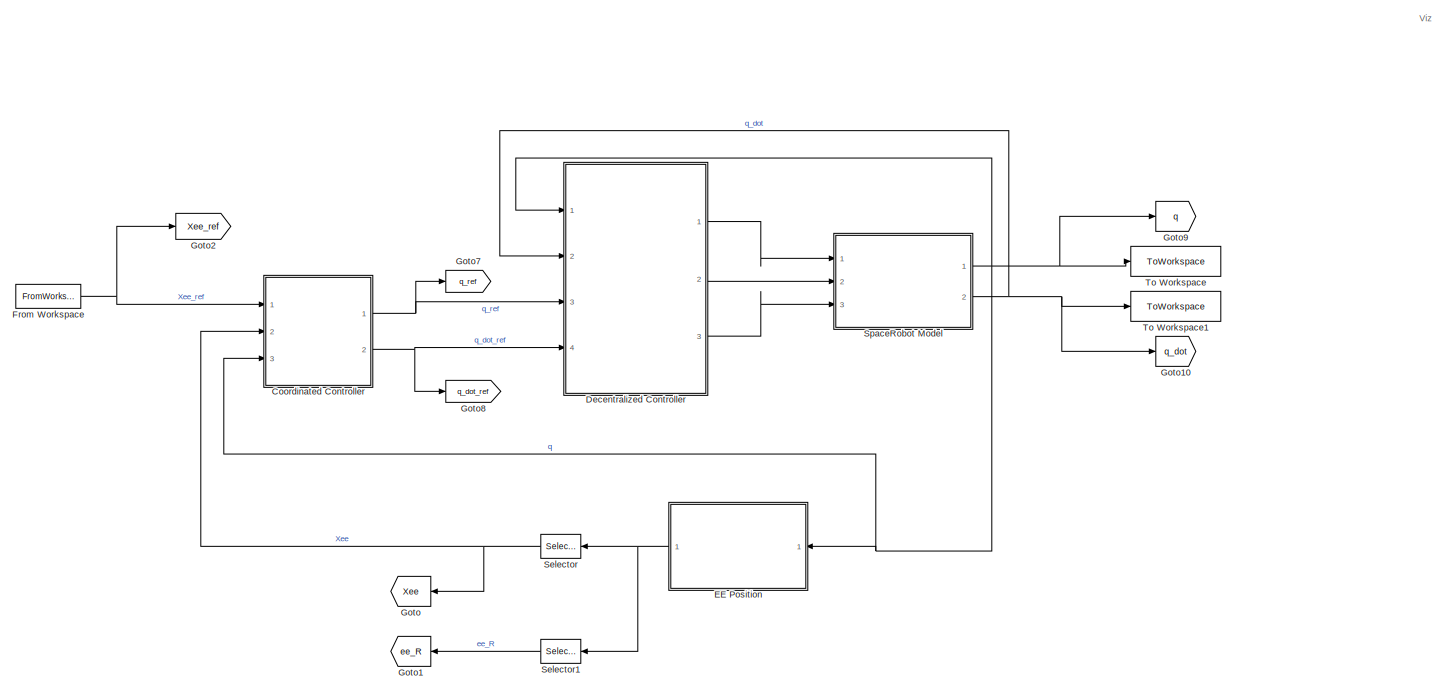
[diagram: root canvas - part 1/2, most of the canvas]
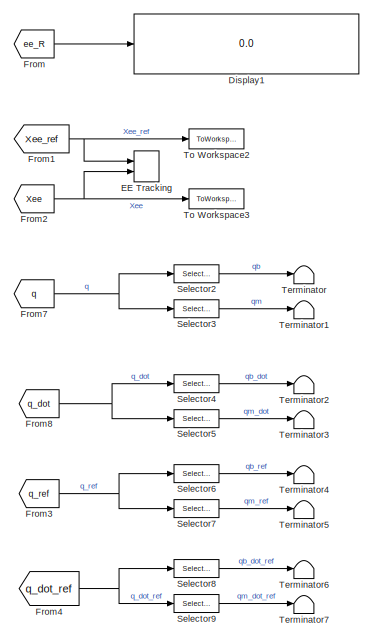
[diagram: root canvas - part 2/2, right side, full height]
MODEL slx_43078829ebe7
KIND model
CONFIG AbsTol = auto
CONFIG EnableMultiTasking = off
CONFIG FixedStep = 0.01
CONFIG MaxStep = auto
CONFIG MinStep = auto
CONFIG RelTol = 1e-3
CONFIG SampleTimeConstraint = Unconstrained
CONFIG SolverName = ode45
CONFIG StartTime = 0.0
CONFIG StopTime = 10
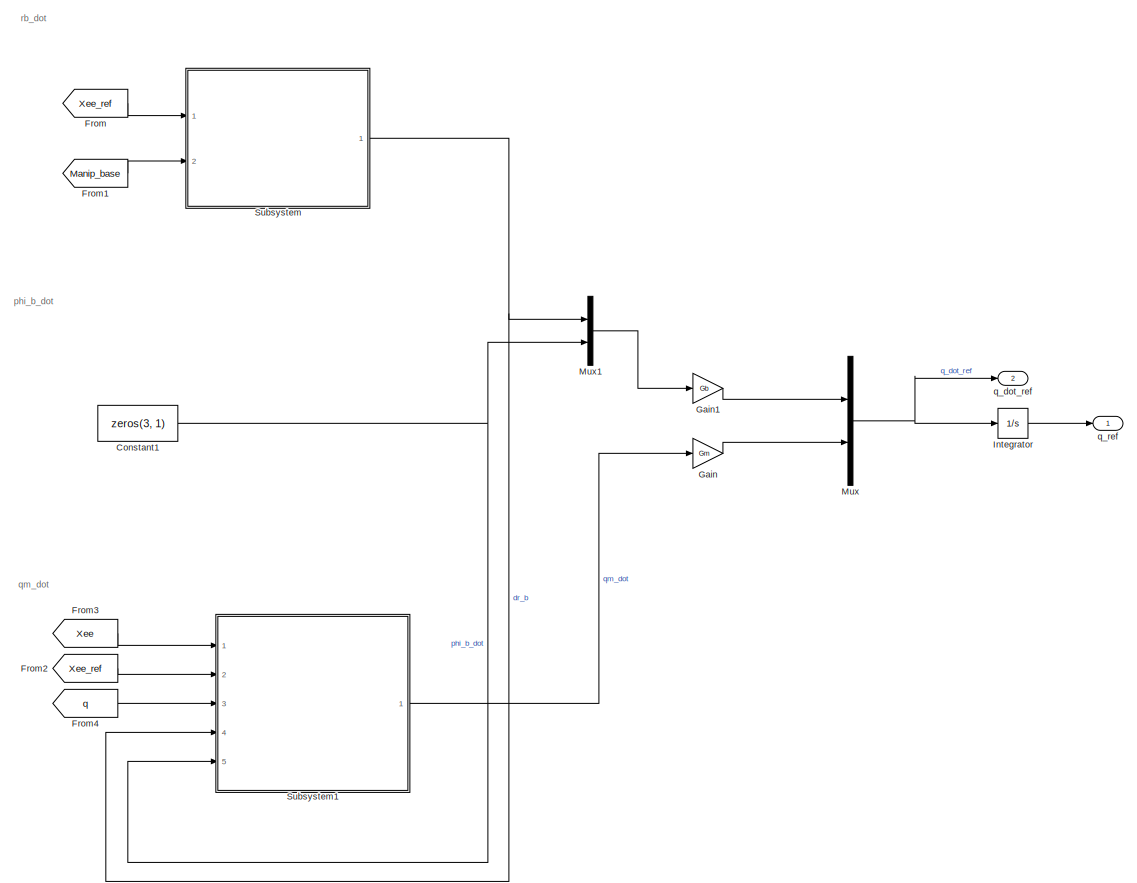
[diagram: Coordinated Controller - part 1/2, right side, full height]
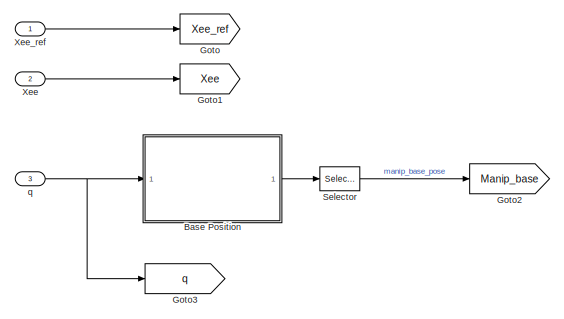
[diagram: Coordinated Controller - part 2/2, middle left region]
BLOCK [SubSystem] Coordinated Controller
  Ports = [3, 2]
  RequestExecContextInheritance = off
BLOCK [SubSystem] Coordinated Controller/Base Position
  Ports = [1, 1]
  ReferencedSubsystem = GetTransform
  RequestExecContextInheritance = off
  SimulateUsing = Interpreted execution
  sourceBody = Body1
  spaceRobot = spaceRobot
  targetBody = inertial
BLOCK [Constant] Coordinated Controller/Constant1
  Value = zeros(3, 1)
BLOCK [From] Coordinated Controller/From
  GotoTag = Xee_ref
BLOCK [From] Coordinated Controller/From1
  GotoTag = Manip_base
BLOCK [From] Coordinated Controller/From2
  GotoTag = Xee_ref
BLOCK [From] Coordinated Controller/From3
  GotoTag = Xee
BLOCK [From] Coordinated Controller/From4
  GotoTag = q
BLOCK [Gain] Coordinated Controller/Gain
  Gain = Gm
BLOCK [Gain] Coordinated Controller/Gain1
  Gain = Gb
BLOCK [Goto] Coordinated Controller/Goto
  GotoTag = Xee_ref
BLOCK [Goto] Coordinated Controller/Goto1
  GotoTag = Xee
BLOCK [Goto] Coordinated Controller/Goto2
  GotoTag = Manip_base
BLOCK [Goto] Coordinated Controller/Goto3
  GotoTag = q
BLOCK [Integrator] Coordinated Controller/Integrator
  InitialCondition = spaceRobot.q
  Ports = [1, 1]
BLOCK [Mux] Coordinated Controller/Mux
  DisplayOption = bar
  Inputs = 2
  Ports = [2, 1]
BLOCK [Mux] Coordinated Controller/Mux1
  DisplayOption = bar
  Inputs = 2
  Ports = [2, 1]
BLOCK [Selector] Coordinated Controller/Selector
  IndexOptions = Index vector (dialog),Index vector (dialog)
  Indices = [1:3],4
  InputPortWidth = [4 4]
  NumberOfDimensions = 2
  OutputSizes = 1,1
  Ports = [1, 1]
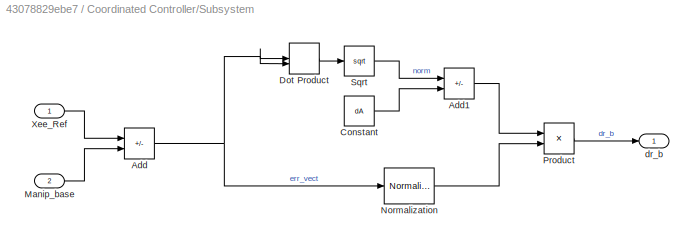
BLOCK [SubSystem] Coordinated Controller/Subsystem
  Ports = [2, 1]
  RequestExecContextInheritance = off
BLOCK [Sum] Coordinated Controller/Subsystem/Add
  IconShape = rectangular
  Inputs = +-
  Ports = [2, 1]
BLOCK [Sum] Coordinated Controller/Subsystem/Add1
  IconShape = rectangular
  Inputs = +-
  Ports = [2, 1]
BLOCK [Constant] Coordinated Controller/Subsystem/Constant
  Value = dA
BLOCK [DotProduct] Coordinated Controller/Subsystem/Dot Product
  OutDataTypeStr = Inherit: Inherit via internal rule
BLOCK [Inport] Coordinated Controller/Subsystem/Manip_base
  Port = 2
BLOCK [Reference] Coordinated Controller/Subsystem/Normalization  REF=dspmathops/Normalization
  Ports = [1, 1]
  SourceBlock = dspmathops/Normalization
  SourceProductBaseCode = DS
  SourceType = Normalization
BLOCK [Product] Coordinated Controller/Subsystem/Product
  Ports = [2, 1]
BLOCK [Sqrt] Coordinated Controller/Subsystem/Sqrt
BLOCK [Inport] Coordinated Controller/Subsystem/Xee_Ref
BLOCK [Outport] Coordinated Controller/Subsystem/dr_b
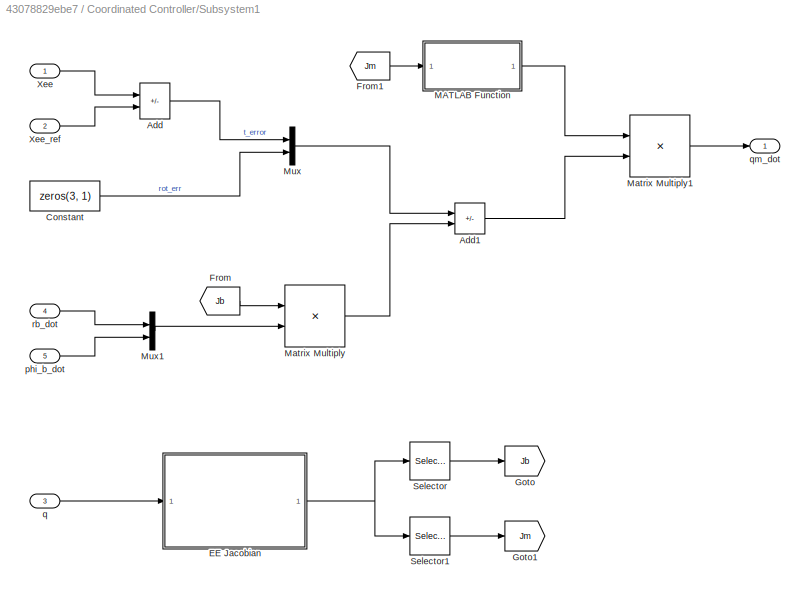
BLOCK [SubSystem] Coordinated Controller/Subsystem1
  Ports = [5, 1]
  RequestExecContextInheritance = off
BLOCK [Sum] Coordinated Controller/Subsystem1/Add
  IconShape = rectangular
  Inputs = -+
  Ports = [2, 1]
BLOCK [Sum] Coordinated Controller/Subsystem1/Add1
  IconShape = rectangular
  Inputs = +-
  Ports = [2, 1]
BLOCK [Constant] Coordinated Controller/Subsystem1/Constant
  Value = zeros(3, 1)
BLOCK [SubSystem] Coordinated Controller/Subsystem1/EE Jacobian
  Ports = [1, 1]
  ReferencedSubsystem = GetJacobian
  RequestExecContextInheritance = off
  SimulateUsing = Interpreted execution
  sourceBody = endeffector
  spaceRobot = spaceRobot
BLOCK [From] Coordinated Controller/Subsystem1/From
  GotoTag = Jb
BLOCK [From] Coordinated Controller/Subsystem1/From1
  GotoTag = Jm
BLOCK [Goto] Coordinated Controller/Subsystem1/Goto
  GotoTag = Jb
BLOCK [Goto] Coordinated Controller/Subsystem1/Goto1
  GotoTag = Jm
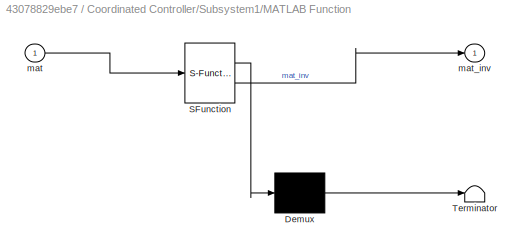
BLOCK [SubSystem] Coordinated Controller/Subsystem1/MATLAB Function
  ErrorFcn = Stateflow.Translate.translate
  PermitHierarchicalResolution = ExplicitOnly
  Ports = [1, 1]
  RequestExecContextInheritance = off
  SFBlockType = MATLAB Function
  TreatAsAtomicUnit = on
BLOCK [Demux] Coordinated Controller/Subsystem1/MATLAB Function/ Demux 
  Outputs = 1
  Ports = [1, 1]
BLOCK [S-Function] Coordinated Controller/Subsystem1/MATLAB Function/ SFunction 
  EnableBusSupport = on
  FunctionName = sf_sfun
  PortCounts = [1 2]
  Ports = [1, 2]
  SFcnIsStateOwnerBlock = off
  SFunctionDeploymentMode = off
  Tag = Stateflow S-Function 1
BLOCK [Terminator] Coordinated Controller/Subsystem1/MATLAB Function/ Terminator 
BLOCK [Inport] Coordinated Controller/Subsystem1/MATLAB Function/mat
BLOCK [Outport] Coordinated Controller/Subsystem1/MATLAB Function/mat_inv
BLOCK [Product] Coordinated Controller/Subsystem1/Matrix Multiply
  Multiplication = Matrix(*)
  Ports = [2, 1]
BLOCK [Product] Coordinated Controller/Subsystem1/Matrix Multiply1
  Multiplication = Matrix(*)
  Ports = [2, 1]
BLOCK [Mux] Coordinated Controller/Subsystem1/Mux
  DisplayOption = bar
  Inputs = 2
  Ports = [2, 1]
BLOCK [Mux] Coordinated Controller/Subsystem1/Mux1
  DisplayOption = bar
  Inputs = 2
  Ports = [2, 1]
BLOCK [Selector] Coordinated Controller/Subsystem1/Selector
  IndexOptions = Index vector (dialog),Index vector (dialog)
  Indices = [1:6],[1:6]
  InputPortWidth = 3
  NumberOfDimensions = 2
  OutputSizes = 1,1
  Ports = [1, 1]
BLOCK [Selector] Coordinated Controller/Subsystem1/Selector1
  IndexOptions = Index vector (dialog),Index vector (dialog)
  Indices = [1:6],[7:6+n]
  InputPortWidth = 3
  NumberOfDimensions = 2
  OutputSizes = 1,1
  Ports = [1, 1]
BLOCK [Inport] Coordinated Controller/Subsystem1/Xee
BLOCK [Inport] Coordinated Controller/Subsystem1/Xee_ref
  Port = 2
BLOCK [Inport] Coordinated Controller/Subsystem1/phi_b_dot
  Port = 5
BLOCK [Inport] Coordinated Controller/Subsystem1/q
  Port = 3
BLOCK [Outport] Coordinated Controller/Subsystem1/qm_dot
BLOCK [Inport] Coordinated Controller/Subsystem1/rb_dot
  Port = 4
BLOCK [Inport] Coordinated Controller/Xee
  Port = 2
BLOCK [Inport] Coordinated Controller/Xee_ref
BLOCK [Inport] Coordinated Controller/q
  Port = 3
BLOCK [Outport] Coordinated Controller/q_dot_ref
  Port = 2
BLOCK [Outport] Coordinated Controller/q_ref
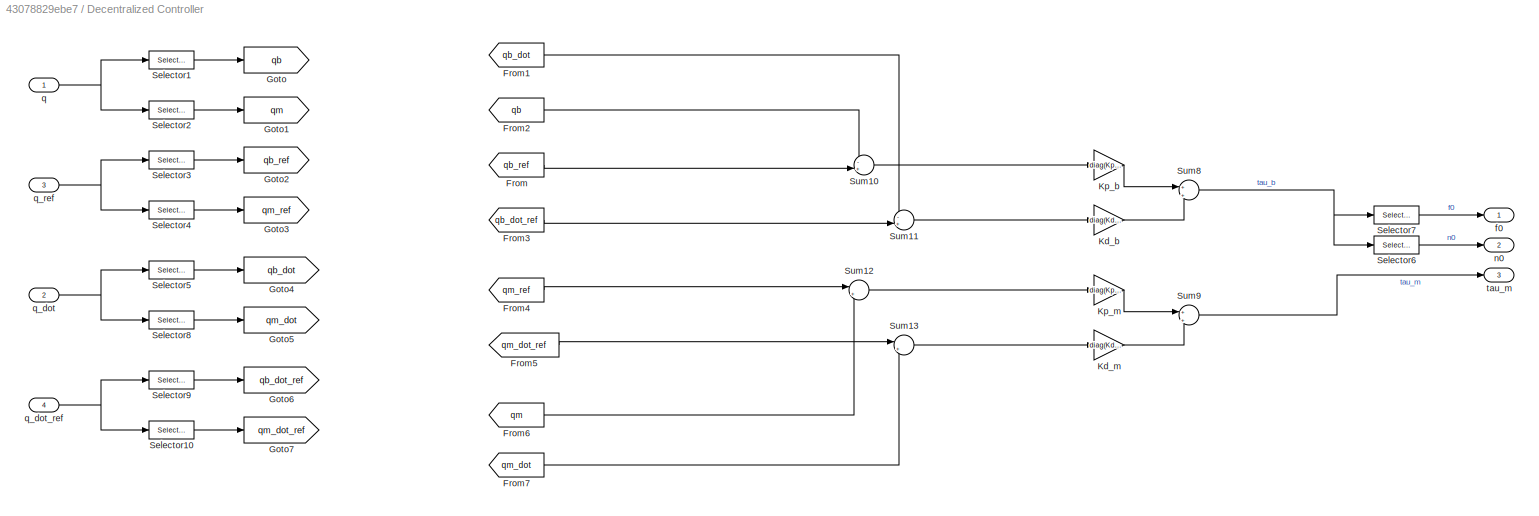
BLOCK [SubSystem] Decentralized Controller
  Ports = [4, 3]
  RequestExecContextInheritance = off
BLOCK [From] Decentralized Controller/From
  GotoTag = qb_ref
BLOCK [From] Decentralized Controller/From1
  GotoTag = qb_dot
BLOCK [From] Decentralized Controller/From2
  GotoTag = qb
BLOCK [From] Decentralized Controller/From3
  GotoTag = qb_dot_ref
BLOCK [From] Decentralized Controller/From4
  GotoTag = qm_ref
BLOCK [From] Decentralized Controller/From5
  GotoTag = qm_dot_ref
BLOCK [From] Decentralized Controller/From6
  GotoTag = qm
BLOCK [From] Decentralized Controller/From7
  GotoTag = qm_dot
BLOCK [Goto] Decentralized Controller/Goto
  GotoTag = qb
BLOCK [Goto] Decentralized Controller/Goto1
  GotoTag = qm
BLOCK [Goto] Decentralized Controller/Goto2
  GotoTag = qb_ref
BLOCK [Goto] Decentralized Controller/Goto3
  GotoTag = qm_ref
BLOCK [Goto] Decentralized Controller/Goto4
  GotoTag = qb_dot
BLOCK [Goto] Decentralized Controller/Goto5
  GotoTag = qm_dot
BLOCK [Goto] Decentralized Controller/Goto6
  GotoTag = qb_dot_ref
BLOCK [Goto] Decentralized Controller/Goto7
  GotoTag = qm_dot_ref
BLOCK [Gain] Decentralized Controller/Kd_b
  Gain = diag(Kd_b)
  Multiplication = Matrix(K*u)
BLOCK [Gain] Decentralized Controller/Kd_m
  Gain = diag(Kd_m)
  Multiplication = Matrix(K*u)
BLOCK [Gain] Decentralized Controller/Kp_b
  Gain = diag(Kp_b)
  Multiplication = Matrix(K*u)
BLOCK [Gain] Decentralized Controller/Kp_m
  Gain = diag(Kp_m)
  Multiplication = Matrix(K*u)
BLOCK [Selector] Decentralized Controller/Selector1
  IndexOptions = Index vector (dialog)
  Indices = [1:6]
  OutputSizes = 1
  Ports = [1, 1]
BLOCK [Selector] Decentralized Controller/Selector10
  IndexOptions = Index vector (dialog)
  Indices = [7:6+n]
  OutputSizes = 1
  Ports = [1, 1]
BLOCK [Selector] Decentralized Controller/Selector2
  IndexOptions = Index vector (dialog)
  Indices = [7:6+n]
  OutputSizes = 1
  Ports = [1, 1]
BLOCK [Selector] Decentralized Controller/Selector3
  IndexOptions = Index vector (dialog)
  Indices = [1:6]
  OutputSizes = 1
  Ports = [1, 1]
BLOCK [Selector] Decentralized Controller/Selector4
  IndexOptions = Index vector (dialog)
  Indices = [7:6+n]
  OutputSizes = 1
  Ports = [1, 1]
BLOCK [Selector] Decentralized Controller/Selector5
  IndexOptions = Index vector (dialog)
  Indices = [1:6]
  OutputSizes = 1
  Ports = [1, 1]
BLOCK [Selector] Decentralized Controller/Selector6
  IndexOptions = Index vector (dialog)
  Indices = [4:6]
  OutputSizes = 1
  Ports = [1, 1]
BLOCK [Selector] Decentralized Controller/Selector7
  IndexOptions = Index vector (dialog)
  Indices = [1:3]
  OutputSizes = 1
  Ports = [1, 1]
BLOCK [Selector] Decentralized Controller/Selector8
  IndexOptions = Index vector (dialog)
  Indices = [7:6+n]
  OutputSizes = 1
  Ports = [1, 1]
BLOCK [Selector] Decentralized Controller/Selector9
  IndexOptions = Index vector (dialog)
  Indices = [1:6]
  OutputSizes = 1
  Ports = [1, 1]
BLOCK [Sum] Decentralized Controller/Sum10
  Inputs = -+|
  Ports = [2, 1]
BLOCK [Sum] Decentralized Controller/Sum11
  Inputs = -+|
  Ports = [2, 1]
BLOCK [Sum] Decentralized Controller/Sum12
  Inputs = |+-
  Ports = [2, 1]
BLOCK [Sum] Decentralized Controller/Sum13
  Inputs = |+-
  Ports = [2, 1]
BLOCK [Sum] Decentralized Controller/Sum8
  Inputs = +|+
  Ports = [2, 1]
BLOCK [Sum] Decentralized Controller/Sum9
  Inputs = +|+
  Ports = [2, 1]
BLOCK [Outport] Decentralized Controller/f0
BLOCK [Outport] Decentralized Controller/n0
  Port = 2
BLOCK [Inport] Decentralized Controller/q
BLOCK [Inport] Decentralized Controller/q_dot
  Port = 2
BLOCK [Inport] Decentralized Controller/q_dot_ref
  Port = 4
BLOCK [Inport] Decentralized Controller/q_ref
  Port = 3
BLOCK [Outport] Decentralized Controller/tau_m
  Port = 3
BLOCK [Display] Display1
  Commented = on
  Decimation = 1
  Ports = [1]
BLOCK [SubSystem] EE Position
  NameLocation = top
  Ports = [1, 1]
  ReferencedSubsystem = GetTransform
  RequestExecContextInheritance = off
  SimulateUsing = Interpreted execution
  sourceBody = endeffector
  spaceRobot = sr
  targetBody = inertial
BLOCK [Record] EE Tracking
  CompatibilityTag = XY
  FileSettingsInternal = {"entries":[{"content":{"excelSettings":{"content":{},"type":"Streamout.ExcelSettings"}},"type":"Streamout.FileSettingStorage","uuid":"d3a7407f-c08a-4b0e-b201-7186a6cb6b58"}],"packageUris":["http://schema.mathworks.com/mf0/streamout_blocks/R2020a"],"version":"1.0"}
  Layout = [1 1]
  Ports = [2]
  SignalsInternal = {"entries":[{"content":{"signals":[{"content":{"blockPath":["traj_tracking/EE Tracking"],"channel":[],"dimensions":[3,1],"domain":"traj_tracking/EE Tracking","hasChildren":true,"lineColor":"#fe330a","plots":[],"port":1,"sid":[""],"signalID":35699,"signalName":"Xee_ref"},"type":"RecordBlkView.Signal","uuid":"b8910b99-2444-41a2-adcb-8d332995e019"},{"content":{"blockPath":["traj_tracking/EE Tracking"...<+2309ch>
  VisualizationBindings = {"xyplotplugin":{"info":[{"series":[{"bindingParametersList":[{"parameter":"Y-Axis","signalID":35765,"signalName":"Xee(2,1)"},{"parameter":"X-Axis","signalID":35705,"signalName":"Xee(1,1)"}],"seriesID":10704},{"bindingParametersList":[{"parameter":"X-Axis","signalID":35700,"signalName":"Xee_ref(1,1)"},{"parameter":"Y-Axis","signalID":35763,"signalName":"Xee_ref(2,1)"}],"seriesID":1677}],"subplotID...<+7ch>
BLOCK [From] From
  Commented = on
  GotoTag = ee_R
BLOCK [FromWorkspace] From Workspace
  VariableName = traj
BLOCK [From] From1
  GotoTag = Xee_ref
BLOCK [From] From2
  GotoTag = Xee
BLOCK [From] From3
  GotoTag = q_ref
BLOCK [From] From4
  GotoTag = q_dot_ref
BLOCK [From] From7
  GotoTag = q
BLOCK [From] From8
  GotoTag = q_dot
BLOCK [Goto] Goto
  GotoTag = Xee
  NameLocation = top
BLOCK [Goto] Goto1
  GotoTag = ee_R
  NameLocation = top
BLOCK [Goto] Goto10
  GotoTag = q_dot
BLOCK [Goto] Goto2
  GotoTag = Xee_ref
BLOCK [Goto] Goto7
  GotoTag = q_ref
BLOCK [Goto] Goto8
  GotoTag = q_dot_ref
BLOCK [Goto] Goto9
  GotoTag = q
BLOCK [Selector] Selector
  IndexOptions = Index vector (dialog),Index vector (dialog)
  Indices = [1:3],4
  InputPortWidth = [4 4]
  NameLocation = top
  NumberOfDimensions = 2
  OutputSizes = 1,1
  Ports = [1, 1]
BLOCK [Selector] Selector1
  IndexOptions = Index vector (dialog),Index vector (dialog)
  Indices = [1:3],[1:3]
  InputPortWidth = [4 4]
  NameLocation = top
  NumberOfDimensions = 2
  OutputSizes = 1,1
  Ports = [1, 1]
BLOCK [Selector] Selector2
  IndexOptions = Index vector (dialog)
  Indices = [1:6]
  OutputSizes = 1
  Ports = [1, 1]
BLOCK [Selector] Selector3
  IndexOptions = Index vector (dialog)
  Indices = [7:6+n]
  OutputSizes = 1
  Ports = [1, 1]
BLOCK [Selector] Selector4
  IndexOptions = Index vector (dialog)
  Indices = [1:6]
  OutputSizes = 1
  Ports = [1, 1]
BLOCK [Selector] Selector5
  IndexOptions = Index vector (dialog)
  Indices = [7:6+n]
  OutputSizes = 1
  Ports = [1, 1]
BLOCK [Selector] Selector6
  IndexOptions = Index vector (dialog)
  Indices = [1:6]
  OutputSizes = 1
  Ports = [1, 1]
BLOCK [Selector] Selector7
  IndexOptions = Index vector (dialog)
  Indices = [7:6+n]
  OutputSizes = 1
  Ports = [1, 1]
BLOCK [Selector] Selector8
  IndexOptions = Index vector (dialog)
  Indices = [1:6]
  OutputSizes = 1
  Ports = [1, 1]
BLOCK [Selector] Selector9
  IndexOptions = Index vector (dialog)
  Indices = [7:6+n]
  OutputSizes = 1
  Ports = [1, 1]
BLOCK [SubSystem] SpaceRobot Model
  Ports = [3, 2]
  ReferencedSubsystem = SpaceRobot_Model
  RequestExecContextInheritance = off
  spaceRobot = sr
BLOCK [Terminator] Terminator
BLOCK [Terminator] Terminator1
BLOCK [Terminator] Terminator2
BLOCK [Terminator] Terminator3
BLOCK [Terminator] Terminator4
BLOCK [Terminator] Terminator5
BLOCK [Terminator] Terminator6
BLOCK [Terminator] Terminator7
BLOCK [ToWorkspace] To Workspace
  FixptAsFi = on
  MaxDataPoints = inf
  Ports = [1]
  SampleTime = -1
  SaveFormat = Timeseries
  VariableName = q
BLOCK [ToWorkspace] To Workspace1
  FixptAsFi = on
  MaxDataPoints = inf
  Ports = [1]
  SampleTime = -1
  SaveFormat = Timeseries
  VariableName = q_dot
BLOCK [ToWorkspace] To Workspace2
  FixptAsFi = on
  MaxDataPoints = inf
  Ports = [1]
  SampleTime = -1
  SaveFormat = Timeseries
  VariableName = Xee_ref
BLOCK [ToWorkspace] To Workspace3
  FixptAsFi = on
  MaxDataPoints = inf
  Ports = [1]
  SampleTime = -1
  SaveFormat = Timeseries
  VariableName = Xee
ANNOTATION (root): Viz
ANNOTATION Coordinated Controller: phi_b_dot
ANNOTATION Coordinated Controller: qm_dot
ANNOTATION Coordinated Controller: rb_dot
LINE Coordinated Controller/Base Position:1 -> Coordinated Controller/Selector:1
NET Coordinated Controller/Constant1:1 -> Coordinated Controller/Mux1:2, Coordinated Controller/Subsystem1:5
LINE Coordinated Controller/From1:1 -> Coordinated Controller/Subsystem:2
LINE Coordinated Controller/From2:1 -> Coordinated Controller/Subsystem1:2
LINE Coordinated Controller/From3:1 -> Coordinated Controller/Subsystem1:1
LINE Coordinated Controller/From4:1 -> Coordinated Controller/Subsystem1:3
LINE Coordinated Controller/From:1 -> Coordinated Controller/Subsystem:1
LINE Coordinated Controller/Gain1:1 -> Coordinated Controller/Mux:1
LINE Coordinated Controller/Gain:1 -> Coordinated Controller/Mux:2
LINE Coordinated Controller/Integrator:1 -> Coordinated Controller/q_ref:1
LINE Coordinated Controller/Mux1:1 -> Coordinated Controller/Gain1:1
NET Coordinated Controller/Mux:1 -> Coordinated Controller/Integrator:1, Coordinated Controller/q_dot_ref:1
LINE Coordinated Controller/Selector:1 -> Coordinated Controller/Goto2:1
LINE Coordinated Controller/Subsystem/Add1:1 -> Coordinated Controller/Subsystem/Product:1
NET Coordinated Controller/Subsystem/Add:1 -> Coordinated Controller/Subsystem/Dot Product:1, Coordinated Controller/Subsystem/Dot Product:2, Coordinated Controller/Subsystem/Normalization:1
LINE Coordinated Controller/Subsystem/Constant:1 -> Coordinated Controller/Subsystem/Add1:2
LINE Coordinated Controller/Subsystem/Dot Product:1 -> Coordinated Controller/Subsystem/Sqrt:1
LINE Coordinated Controller/Subsystem/Manip_base:1 -> Coordinated Controller/Subsystem/Add:2
LINE Coordinated Controller/Subsystem/Normalization:1 -> Coordinated Controller/Subsystem/Product:2
LINE Coordinated Controller/Subsystem/Product:1 -> Coordinated Controller/Subsystem/dr_b:1
LINE Coordinated Controller/Subsystem/Sqrt:1 -> Coordinated Controller/Subsystem/Add1:1
LINE Coordinated Controller/Subsystem/Xee_Ref:1 -> Coordinated Controller/Subsystem/Add:1
LINE Coordinated Controller/Subsystem1/Add1:1 -> Coordinated Controller/Subsystem1/Matrix Multiply1:2
LINE Coordinated Controller/Subsystem1/Add:1 -> Coordinated Controller/Subsystem1/Mux:1
LINE Coordinated Controller/Subsystem1/Constant:1 -> Coordinated Controller/Subsystem1/Mux:2
NET Coordinated Controller/Subsystem1/EE Jacobian:1 -> Coordinated Controller/Subsystem1/Selector1:1, Coordinated Controller/Subsystem1/Selector:1
LINE Coordinated Controller/Subsystem1/From1:1 -> Coordinated Controller/Subsystem1/MATLAB Function:1
LINE Coordinated Controller/Subsystem1/From:1 -> Coordinated Controller/Subsystem1/Matrix Multiply:1
LINE Coordinated Controller/Subsystem1/MATLAB Function:1 -> Coordinated Controller/Subsystem1/Matrix Multiply1:1
LINE Coordinated Controller/Subsystem1/Matrix Multiply1:1 -> Coordinated Controller/Subsystem1/qm_dot:1
LINE Coordinated Controller/Subsystem1/Matrix Multiply:1 -> Coordinated Controller/Subsystem1/Add1:2
LINE Coordinated Controller/Subsystem1/Mux1:1 -> Coordinated Controller/Subsystem1/Matrix Multiply:2
LINE Coordinated Controller/Subsystem1/Mux:1 -> Coordinated Controller/Subsystem1/Add1:1
LINE Coordinated Controller/Subsystem1/Selector1:1 -> Coordinated Controller/Subsystem1/Goto1:1
LINE Coordinated Controller/Subsystem1/Selector:1 -> Coordinated Controller/Subsystem1/Goto:1
LINE Coordinated Controller/Subsystem1/Xee:1 -> Coordinated Controller/Subsystem1/Add:1
LINE Coordinated Controller/Subsystem1/Xee_ref:1 -> Coordinated Controller/Subsystem1/Add:2
LINE Coordinated Controller/Subsystem1/phi_b_dot:1 -> Coordinated Controller/Subsystem1/Mux1:2
LINE Coordinated Controller/Subsystem1/q:1 -> Coordinated Controller/Subsystem1/EE Jacobian:1
LINE Coordinated Controller/Subsystem1/rb_dot:1 -> Coordinated Controller/Subsystem1/Mux1:1
LINE Coordinated Controller/Subsystem1:1 -> Coordinated Controller/Gain:1
NET Coordinated Controller/Subsystem:1 -> Coordinated Controller/Mux1:1, Coordinated Controller/Subsystem1:4
LINE Coordinated Controller/Xee:1 -> Coordinated Controller/Goto1:1
LINE Coordinated Controller/Xee_ref:1 -> Coordinated Controller/Goto:1
NET Coordinated Controller/q:1 -> Coordinated Controller/Base Position:1, Coordinated Controller/Goto3:1
NET Coordinated Controller:1 -> Decentralized Controller:3, Goto7:1
NET Coordinated Controller:2 -> Decentralized Controller:4, Goto8:1
LINE Decentralized Controller/From1:1 -> Decentralized Controller/Sum11:1
LINE Decentralized Controller/From2:1 -> Decentralized Controller/Sum10:1
LINE Decentralized Controller/From3:1 -> Decentralized Controller/Sum11:2
LINE Decentralized Controller/From4:1 -> Decentralized Controller/Sum12:1
LINE Decentralized Controller/From5:1 -> Decentralized Controller/Sum13:1
LINE Decentralized Controller/From6:1 -> Decentralized Controller/Sum12:2
LINE Decentralized Controller/From7:1 -> Decentralized Controller/Sum13:2
LINE Decentralized Controller/From:1 -> Decentralized Controller/Sum10:2
LINE Decentralized Controller/Kd_b:1 -> Decentralized Controller/Sum8:2
LINE Decentralized Controller/Kd_m:1 -> Decentralized Controller/Sum9:2
LINE Decentralized Controller/Kp_b:1 -> Decentralized Controller/Sum8:1
LINE Decentralized Controller/Kp_m:1 -> Decentralized Controller/Sum9:1
LINE Decentralized Controller/Selector10:1 -> Decentralized Controller/Goto7:1
LINE Decentralized Controller/Selector1:1 -> Decentralized Controller/Goto:1
LINE Decentralized Controller/Selector2:1 -> Decentralized Controller/Goto1:1
LINE Decentralized Controller/Selector3:1 -> Decentralized Controller/Goto2:1
LINE Decentralized Controller/Selector4:1 -> Decentralized Controller/Goto3:1
LINE Decentralized Controller/Selector5:1 -> Decentralized Controller/Goto4:1
LINE Decentralized Controller/Selector6:1 -> Decentralized Controller/n0:1
LINE Decentralized Controller/Selector7:1 -> Decentralized Controller/f0:1
LINE Decentralized Controller/Selector8:1 -> Decentralized Controller/Goto5:1
LINE Decentralized Controller/Selector9:1 -> Decentralized Controller/Goto6:1
LINE Decentralized Controller/Sum10:1 -> Decentralized Controller/Kp_b:1
LINE Decentralized Controller/Sum11:1 -> Decentralized Controller/Kd_b:1
LINE Decentralized Controller/Sum12:1 -> Decentralized Controller/Kp_m:1
LINE Decentralized Controller/Sum13:1 -> Decentralized Controller/Kd_m:1
NET Decentralized Controller/Sum8:1 -> Decentralized Controller/Selector6:1, Decentralized Controller/Selector7:1
LINE Decentralized Controller/Sum9:1 -> Decentralized Controller/tau_m:1
NET Decentralized Controller/q:1 -> Decentralized Controller/Selector1:1, Decentralized Controller/Selector2:1
NET Decentralized Controller/q_dot:1 -> Decentralized Controller/Selector5:1, Decentralized Controller/Selector8:1
NET Decentralized Controller/q_dot_ref:1 -> Decentralized Controller/Selector10:1, Decentralized Controller/Selector9:1
NET Decentralized Controller/q_ref:1 -> Decentralized Controller/Selector3:1, Decentralized Controller/Selector4:1
LINE Decentralized Controller:1 -> SpaceRobot Model:1
LINE Decentralized Controller:2 -> SpaceRobot Model:2
LINE Decentralized Controller:3 -> SpaceRobot Model:3
NET EE Position:1 -> Selector1:1, Selector:1
NET From Workspace:1 -> Coordinated Controller:1, Goto2:1
NET From1:1 -> EE Tracking:1, To Workspace2:1
NET From2:1 -> EE Tracking:2, To Workspace3:1
NET From3:1 -> Selector6:1, Selector7:1
NET From4:1 -> Selector8:1, Selector9:1
NET From7:1 -> Selector2:1, Selector3:1
NET From8:1 -> Selector4:1, Selector5:1
LINE From:1 -> Display1:1
LINE Selector1:1 -> Goto1:1
LINE Selector2:1 -> Terminator:1
LINE Selector3:1 -> Terminator1:1
LINE Selector4:1 -> Terminator2:1
LINE Selector5:1 -> Terminator3:1
LINE Selector6:1 -> Terminator4:1
LINE Selector7:1 -> Terminator5:1
LINE Selector8:1 -> Terminator6:1
LINE Selector9:1 -> Terminator7:1
NET Selector:1 -> Coordinated Controller:2, Goto:1
NET SpaceRobot Model:1 -> Coordinated Controller:3, Decentralized Controller:1, EE Position:1, Goto9:1, To Workspace:1
NET SpaceRobot Model:2 -> Decentralized Controller:2, Goto10:1, To Workspace1:1
note: NET lines group one-source signal fan-out (src -> all destinations, sorted); 1:1 wires keep LINE
CHART Coordinated Controller/Subsystem1/MATLAB Function states=1 transitions=1
  STATE_LABEL 'eML_blk_kernel()'
  STATE_LABEL 'SCRIPT:\nfunction mat_inv = fcn(mat)\n\nmat_inv = pinv(mat);\n'
CHART  states=0 transitions=0
